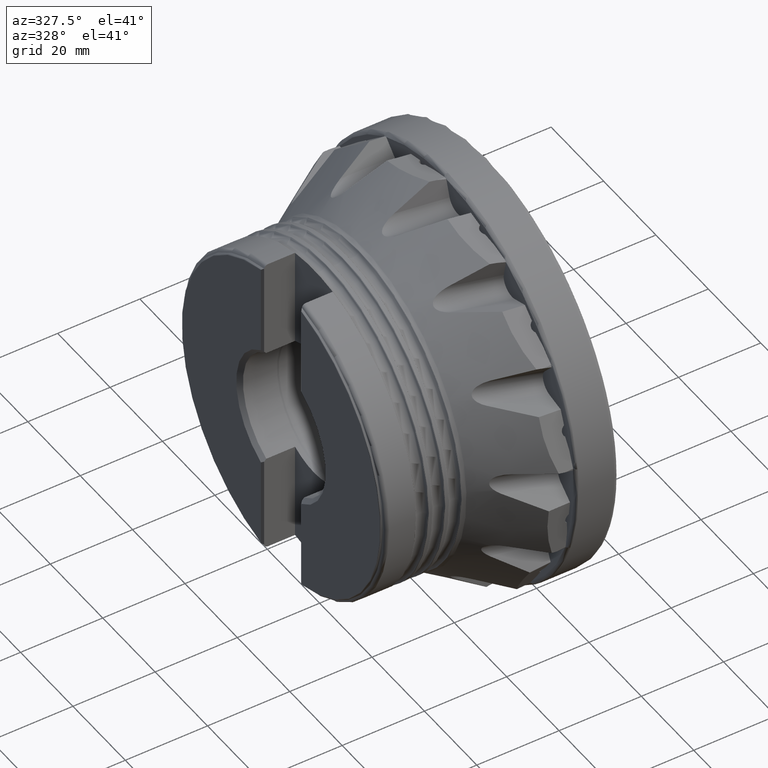
[diagram: clean part render]
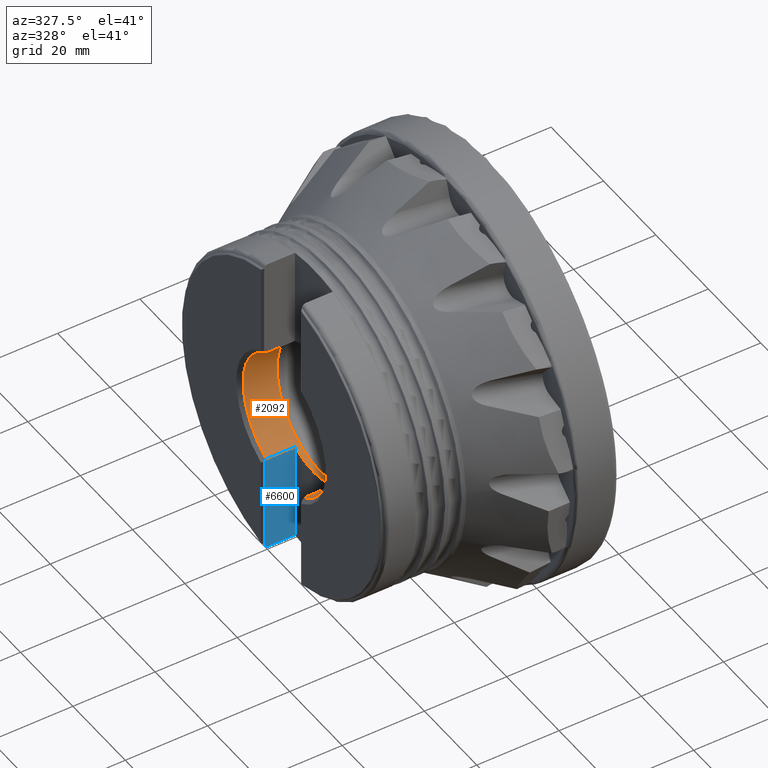
[diagram: same view with the hole feature highlighted: cylindrical wall and planar end face, labeled with their STEP entity ids]
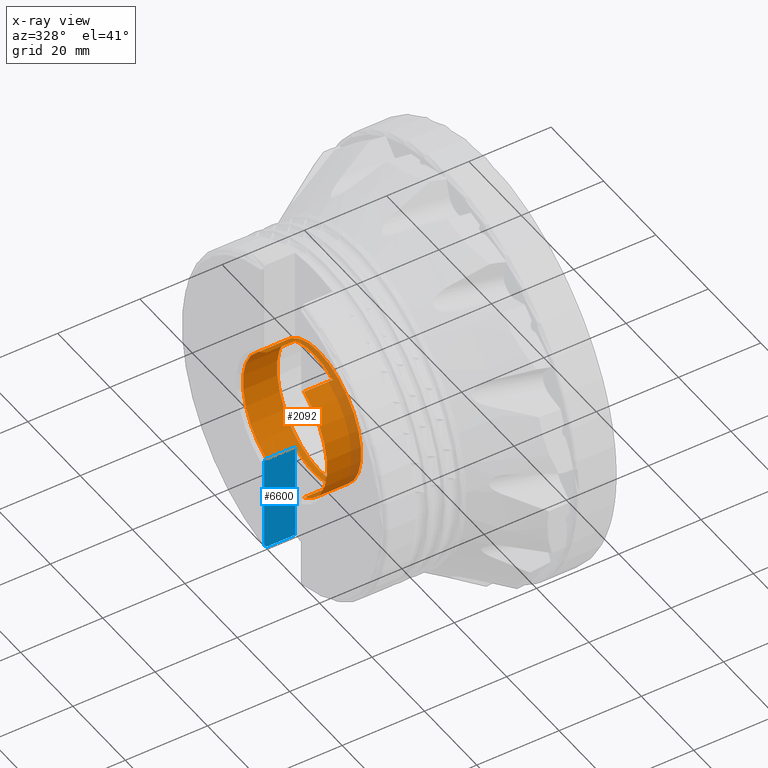
[diagram: x-ray of the same camera — body ghosted, the hole faces saturated]
A machine part, auxiliary view. The highlighted faces form one hole feature of diameter 32.15 mm: the cylindrical wall (entity #2092, orange) and its adjacent planar end face (entity #6600, blue) — they share a circular edge in the B-rep.
The next image is the same camera in x-ray (body ghosted, the hole faces saturated) — the bore reads through the body.
Wall:
#102 = EDGE_CURVE ( 'NONE', #10263, #12245, #7971, .T. ) ;
#375 = ORIENTED_EDGE ( 'NONE', *, *, #9726, .T. ) ;
#451 = EDGE_CURVE ( 'NONE', #11304, #11989, #5970, .T. ) ;
#539 = AXIS2_PLACEMENT_3D ( 'NONE', #10567, #4635, #11594 ) ;
#609 = EDGE_CURVE ( 'NONE', #7766, #10263, #11109, .T. ) ;
#787 = AXIS2_PLACEMENT_3D ( 'NONE', #7133, #1185, #8135 ) ;
#987 = ORIENTED_EDGE ( 'NONE', *, *, #102, .T. ) ;
#1037 = CARTESIAN_POINT ( 'NONE',  ( 8.511868235461817200E-016, -7.200000000000000200, 14.37239106759900800 ) ) ;
#1185 = DIRECTION ( 'NONE',  ( -1.000000000000000000, -0.0000000000000000000, -0.0000000000000000000 ) ) ;
#1223 = DIRECTION ( 'NONE',  ( -1.000000000000000000, 0.0000000000000000000, 0.0000000000000000000 ) ) ;
#1263 = VERTEX_POINT ( 'NONE', #8096 ) ;
#1349 = CARTESIAN_POINT ( 'NONE',  ( -41.39999999999999900, -7.200000000000004600, -14.37239106759900800 ) ) ;
#1415 = EDGE_CURVE ( 'NONE', #1928, #1263, #3706, .T. ) ;
#1429 = CARTESIAN_POINT ( 'NONE',  ( 8.511868235461817200E-016, -7.200000000000000200, -14.37239106759900800 ) ) ;
#1504 = DIRECTION ( 'NONE',  ( -1.000000000000000000, -0.0000000000000000000, -0.0000000000000000000 ) ) ;
#1717 = CARTESIAN_POINT ( 'NONE',  ( -48.40000000000002000, 7.199999999999994000, -14.37239106759904300 ) ) ;
#1775 = VECTOR ( 'NONE', #7088, 1000.000000000000000 ) ;
#1840 = CARTESIAN_POINT ( 'NONE',  ( -48.39999999999999900, 0.0000000000000000000, 0.0000000000000000000 ) ) ;
#1901 = ORIENTED_EDGE ( 'NONE', *, *, #9236, .T. ) ;
#1928 = VERTEX_POINT ( 'NONE', #4260 ) ;
#2092 = ADVANCED_FACE ( 'NONE', ( #11186, #4471 ), #8015, .F. ) ;
#2873 = CARTESIAN_POINT ( 'NONE',  ( -48.39999999999999900, 7.199999999999994000, 14.37239106759902700 ) ) ;
#2876 = LINE ( 'NONE', #1037, #1775 ) ;
#3284 = ORIENTED_EDGE ( 'NONE', *, *, #609, .T. ) ;
#3706 = CIRCLE ( 'NONE', #10593, 16.07499999999999200 ) ;
#4151 = VERTEX_POINT ( 'NONE', #4649 ) ;
#4260 = CARTESIAN_POINT ( 'NONE',  ( -48.39999999999999900, -7.200000000000005500, -14.37239106759902200 ) ) ;
#4426 = DIRECTION ( 'NONE',  ( 1.000000000000000000, -0.0000000000000000000, -0.0000000000000000000 ) ) ;
#4471 = FACE_OUTER_BOUND ( 'NONE', #7945, .T. ) ;
#4635 = DIRECTION ( 'NONE',  ( 1.000000000000000000, -0.0000000000000000000, -0.0000000000000000000 ) ) ;
#4649 = CARTESIAN_POINT ( 'NONE',  ( -40.14999999999999900, 0.0000000000000000000, -16.07499999999999600 ) ) ;
#4942 = EDGE_CURVE ( 'NONE', #11989, #1928, #6435, .T. ) ;
#5421 = ORIENTED_EDGE ( 'NONE', *, *, #1415, .T. ) ;
#5427 = DIRECTION ( 'NONE',  ( 0.0000000000000000000, 0.0000000000000000000, -1.000000000000000000 ) ) ;
#5491 = ORIENTED_EDGE ( 'NONE', *, *, #9414, .T. ) ;
#5519 = DIRECTION ( 'NONE',  ( 1.000000000000000000, -0.0000000000000000000, -0.0000000000000000000 ) ) ;
#5587 = DIRECTION ( 'NONE',  ( -1.000000000000000000, -0.0000000000000000000, -0.0000000000000000000 ) ) ;
#5693 = AXIS2_PLACEMENT_3D ( 'NONE', #6455, #5587, #5427 ) ;
#5771 = CIRCLE ( 'NONE', #539, 16.07499999999999600 ) ;
#5879 = CARTESIAN_POINT ( 'NONE',  ( -8.511868235461817200E-016, 7.200000000000000200, 14.37239106759900800 ) ) ;
#5970 = CIRCLE ( 'NONE', #5693, 16.07499999999999200 ) ;
#6364 = CARTESIAN_POINT ( 'NONE',  ( -41.39999999999999900, 7.199999999999994800, 14.37239106759900800 ) ) ;
#6435 = LINE ( 'NONE', #1429, #10005 ) ;
#6455 = CARTESIAN_POINT ( 'NONE',  ( -41.39999999999999900, 0.0000000000000000000, 0.0000000000000000000 ) ) ;
#6796 = DIRECTION ( 'NONE',  ( 0.0000000000000000000, 0.0000000000000000000, -1.000000000000000000 ) ) ;
#7088 = DIRECTION ( 'NONE',  ( 1.000000000000000000, -0.0000000000000000000, -0.0000000000000000000 ) ) ;
#7133 = CARTESIAN_POINT ( 'NONE',  ( -41.39999999999999900, 0.0000000000000000000, 0.0000000000000000000 ) ) ;
#7317 = ORIENTED_EDGE ( 'NONE', *, *, #451, .T. ) ;
#7322 = ORIENTED_EDGE ( 'NONE', *, *, #4942, .T. ) ;
#7444 = CARTESIAN_POINT ( 'NONE',  ( -48.39999999999999900, 0.0000000000000000000, 0.0000000000000000000 ) ) ;
#7743 = CARTESIAN_POINT ( 'NONE',  ( -41.39999999999999900, -7.200000000000004600, 14.37239106759900800 ) ) ;
#7766 = VERTEX_POINT ( 'NONE', #6364 ) ;
#7799 = CARTESIAN_POINT ( 'NONE',  ( 0.0000000000000000000, 0.0000000000000000000, 0.0000000000000000000 ) ) ;
#7945 = EDGE_LOOP ( 'NONE', ( #375 ) ) ;
#7971 = CIRCLE ( 'NONE', #8821, 16.07499999999999200 ) ;
#8004 = LINE ( 'NONE', #9363, #8155 ) ;
#8015 = CYLINDRICAL_SURFACE ( 'NONE', #10517, 16.07499999999999200 ) ;
#8096 = CARTESIAN_POINT ( 'NONE',  ( -48.40000000000002000, -7.200000000000005500, 14.37239106759903600 ) ) ;
#8135 = DIRECTION ( 'NONE',  ( 0.0000000000000000000, 1.776356839400250500E-015, -1.000000000000000000 ) ) ;
#8155 = VECTOR ( 'NONE', #4426, 1000.000000000000000 ) ;
#8450 = DIRECTION ( 'NONE',  ( 0.0000000000000000000, 0.0000000000000000000, 1.000000000000000000 ) ) ;
#8821 = AXIS2_PLACEMENT_3D ( 'NONE', #1840, #11774, #10241 ) ;
#8883 = EDGE_LOOP ( 'NONE', ( #5421, #1901, #5491, #3284, #987, #9654, #7317, #7322 ) ) ;
#9104 = VERTEX_POINT ( 'NONE', #7743 ) ;
#9236 = EDGE_CURVE ( 'NONE', #1263, #9104, #2876, .T. ) ;
#9363 = CARTESIAN_POINT ( 'NONE',  ( -8.511868235461817200E-016, 7.200000000000000200, -14.37239106759900800 ) ) ;
#9414 = EDGE_CURVE ( 'NONE', #9104, #7766, #10031, .T. ) ;
#9654 = ORIENTED_EDGE ( 'NONE', *, *, #12525, .T. ) ;
#9726 = EDGE_CURVE ( 'NONE', #4151, #4151, #5771, .T. ) ;
#10005 = VECTOR ( 'NONE', #12328, 1000.000000000000000 ) ;
#10031 = CIRCLE ( 'NONE', #787, 16.07499999999999200 ) ;
#10241 = DIRECTION ( 'NONE',  ( 0.0000000000000000000, 0.0000000000000000000, 1.000000000000000000 ) ) ;
#10263 = VERTEX_POINT ( 'NONE', #2873 ) ;
#10409 = CARTESIAN_POINT ( 'NONE',  ( -41.39999999999999900, 7.199999999999994800, -14.37239106759900800 ) ) ;
#10517 = AXIS2_PLACEMENT_3D ( 'NONE', #7799, #5519, #6796 ) ;
#10567 = CARTESIAN_POINT ( 'NONE',  ( -40.14999999999999900, 0.0000000000000000000, 0.0000000000000000000 ) ) ;
#10593 = AXIS2_PLACEMENT_3D ( 'NONE', #7444, #1504, #8450 ) ;
#10947 = VECTOR ( 'NONE', #1223, 1000.000000000000000 ) ;
#11109 = LINE ( 'NONE', #5879, #10947 ) ;
#11186 = FACE_OUTER_BOUND ( 'NONE', #8883, .T. ) ;
#11304 = VERTEX_POINT ( 'NONE', #10409 ) ;
#11594 = DIRECTION ( 'NONE',  ( 0.0000000000000000000, 0.0000000000000000000, -1.000000000000000000 ) ) ;
#11774 = DIRECTION ( 'NONE',  ( -1.000000000000000000, -0.0000000000000000000, -0.0000000000000000000 ) ) ;
#11989 = VERTEX_POINT ( 'NONE', #1349 ) ;
#12245 = VERTEX_POINT ( 'NONE', #1717 ) ;
#12328 = DIRECTION ( 'NONE',  ( -1.000000000000000000, 0.0000000000000000000, 0.0000000000000000000 ) ) ;
#12525 = EDGE_CURVE ( 'NONE', #12245, #11304, #8004, .T. ) ;
End face:
#165 = ORIENTED_EDGE ( 'NONE', *, *, #6167, .F. ) ;
#373 = CARTESIAN_POINT ( 'NONE',  ( -41.42857252953746900, 7.199999999999995700, -38.32025068518119300 ) ) ;
#790 = DIRECTION ( 'NONE',  ( -1.000000000000000000, -1.182203921591919000E-016, 0.0000000000000000000 ) ) ;
#1399 = CARTESIAN_POINT ( 'NONE',  ( -41.39999999999999900, 7.199999999999994800, -38.30754676226784700 ) ) ;
#1558 = ORIENTED_EDGE ( 'NONE', *, *, #12525, .F. ) ;
#1582 = CARTESIAN_POINT ( 'NONE',  ( -48.89999999999999900, 7.199999999999994000, -37.56441585497369600 ) ) ;
#1717 = CARTESIAN_POINT ( 'NONE',  ( -48.40000000000002000, 7.199999999999994000, -14.37239106759904300 ) ) ;
#1989 = B_SPLINE_CURVE_WITH_KNOTS ( 'NONE', 3,
 ( #6115, #12048, #9094, #3155 ),
 .UNSPECIFIED., .F., .F.,
 ( 4, 4 ),
 ( 0.06484678048183240000, 0.06557714753464855000 ),
 .UNSPECIFIED. ) ;
#2492 = ORIENTED_EDGE ( 'NONE', *, *, #6193, .T. ) ;
#2678 = CARTESIAN_POINT ( 'NONE',  ( -48.39315493733440800, 7.199999999999993100, -38.24089574729672600 ) ) ;
#2987 = CARTESIAN_POINT ( 'NONE',  ( -48.89999999999999900, 7.199999999999994000, -37.09776408356708500 ) ) ;
#3155 = CARTESIAN_POINT ( 'NONE',  ( -48.90000000000782900, 7.199999999999994000, -14.92952192805446500 ) ) ;
#3181 = CARTESIAN_POINT ( 'NONE',  ( -41.49059737205869400, 7.199999999999994800, -38.32962300884264600 ) ) ;
#3228 = LINE ( 'NONE', #2987, #12650 ) ;
#3558 = CARTESIAN_POINT ( 'NONE',  ( -48.90000000000782900, 7.199999999999994000, -14.92952192805446500 ) ) ;
#3690 = CARTESIAN_POINT ( 'NONE',  ( -47.96233724523590800, 7.200000000000000200, -38.32962300884264600 ) ) ;
#3734 = VERTEX_POINT ( 'NONE', #3558 ) ;
#3773 = VERTEX_POINT ( 'NONE', #5641 ) ;
#4426 = DIRECTION ( 'NONE',  ( 1.000000000000000000, -0.0000000000000000000, -0.0000000000000000000 ) ) ;
#4434 = B_SPLINE_CURVE_WITH_KNOTS ( 'NONE', 3,
 ( #3690, #9613, #2678, #4684, #11639, #5678 ),
 .UNSPECIFIED., .F., .F.,
 ( 4, 2, 4 ),
 ( 0.006145485188158508700, 0.006791258069422140400, 0.007437030950685772100 ),
 .UNSPECIFIED. ) ;
#4684 = CARTESIAN_POINT ( 'NONE',  ( -48.72588908448582900, 7.199999999999994000, -37.96738159230030600 ) ) ;
#4781 = ORIENTED_EDGE ( 'NONE', *, *, #11126, .T. ) ;
#4823 = DIRECTION ( 'NONE',  ( 1.000000000000000000, -0.0000000000000000000, -0.0000000000000000000 ) ) ;
#5641 = CARTESIAN_POINT ( 'NONE',  ( -41.39999999999999900, 7.199999999999994800, -38.30754676226784700 ) ) ;
#5678 = CARTESIAN_POINT ( 'NONE',  ( -48.89999999999999900, 7.199999999999994000, -37.56441585497369600 ) ) ;
#5747 = VECTOR ( 'NONE', #10619, 1000.000000000000000 ) ;
#5878 = EDGE_CURVE ( 'NONE', #10253, #8067, #10198, .T. ) ;
#6115 = CARTESIAN_POINT ( 'NONE',  ( -48.40000000000002000, 7.199999999999994000, -14.37239106759904300 ) ) ;
#6167 = EDGE_CURVE ( 'NONE', #10253, #8975, #4434, .T. ) ;
#6193 = EDGE_CURVE ( 'NONE', #3773, #11304, #10863, .T. ) ;
#6355 = CARTESIAN_POINT ( 'NONE',  ( -41.45916290143408400, 7.199999999999995700, -38.32773013820240500 ) ) ;
#6368 = EDGE_LOOP ( 'NONE', ( #9480, #4781, #165, #8959, #12780, #2492, #1558 ) ) ;
#6600 = ADVANCED_FACE ( 'NONE', ( #11258 ), #12682, .F. ) ;
#6757 = DIRECTION ( 'NONE',  ( -1.182203921591919000E-016, 1.000000000000000000, 0.0000000000000000000 ) ) ;
#7353 = CARTESIAN_POINT ( 'NONE',  ( -41.41383451620527000, 7.199999999999994800, -38.31469927187224300 ) ) ;
#7614 = CARTESIAN_POINT ( 'NONE',  ( -41.39999999999999900, 7.199999999999994800, -40.00000000000000000 ) ) ;
#7815 = CARTESIAN_POINT ( 'NONE',  ( -47.96233724523590800, 7.200000000000000200, -38.32962300884264600 ) ) ;
#8004 = LINE ( 'NONE', #9363, #8155 ) ;
#8067 = VERTEX_POINT ( 'NONE', #3181 ) ;
#8155 = VECTOR ( 'NONE', #4426, 1000.000000000000000 ) ;
#8345 = AXIS2_PLACEMENT_3D ( 'NONE', #8706, #6757, #790 ) ;
#8680 = EDGE_CURVE ( 'NONE', #12245, #3734, #1989, .T. ) ;
#8706 = CARTESIAN_POINT ( 'NONE',  ( -41.39999999999999900, 7.199999999999994800, -40.00000000000000000 ) ) ;
#8959 = ORIENTED_EDGE ( 'NONE', *, *, #5878, .T. ) ;
#8975 = VERTEX_POINT ( 'NONE', #1582 ) ;
#9094 = CARTESIAN_POINT ( 'NONE',  ( -48.73298243544810800, 7.199999999999994000, -14.74409628978426100 ) ) ;
#9306 = CARTESIAN_POINT ( 'NONE',  ( -41.49059737205869400, 7.199999999999994800, -38.32962300884264600 ) ) ;
#9363 = CARTESIAN_POINT ( 'NONE',  ( -8.511868235461817200E-016, 7.200000000000000200, -14.37239106759900800 ) ) ;
#9480 = ORIENTED_EDGE ( 'NONE', *, *, #8680, .T. ) ;
#9613 = CARTESIAN_POINT ( 'NONE',  ( -48.17996749756692800, 7.199999999999994000, -38.32271778131917700 ) ) ;
#9871 = VECTOR ( 'NONE', #4823, 1000.000000000000000 ) ;
#9926 = DIRECTION ( 'NONE',  ( 0.0000000000000000000, 0.0000000000000000000, -1.000000000000000000 ) ) ;
#10198 = LINE ( 'NONE', #10760, #9871 ) ;
#10253 = VERTEX_POINT ( 'NONE', #7815 ) ;
#10300 = CARTESIAN_POINT ( 'NONE',  ( -41.47495707406896800, 7.199999999999995700, -38.32962300884264600 ) ) ;
#10409 = CARTESIAN_POINT ( 'NONE',  ( -41.39999999999999900, 7.199999999999994800, -14.37239106759900800 ) ) ;
#10619 = DIRECTION ( 'NONE',  ( -0.0000000000000000000, -0.0000000000000000000, 1.000000000000000000 ) ) ;
#10760 = CARTESIAN_POINT ( 'NONE',  ( -8.511868235461817200E-016, 7.200000000000000200, -38.32962300884264600 ) ) ;
#10863 = LINE ( 'NONE', #7614, #5747 ) ;
#11126 = EDGE_CURVE ( 'NONE', #3734, #8975, #3228, .T. ) ;
#11258 = FACE_OUTER_BOUND ( 'NONE', #6368, .T. ) ;
#11304 = VERTEX_POINT ( 'NONE', #10409 ) ;
#11497 = EDGE_CURVE ( 'NONE', #8067, #3773, #12653, .T. ) ;
#11639 = CARTESIAN_POINT ( 'NONE',  ( -48.84751051305600800, 7.199999999999994000, -37.77343780665968600 ) ) ;
#12048 = CARTESIAN_POINT ( 'NONE',  ( -48.56630372447404700, 7.199999999999994000, -14.55839577331199700 ) ) ;
#12245 = VERTEX_POINT ( 'NONE', #1717 ) ;
#12525 = EDGE_CURVE ( 'NONE', #12245, #11304, #8004, .T. ) ;
#12650 = VECTOR ( 'NONE', #9926, 1000.000000000000000 ) ;
#12653 = B_SPLINE_CURVE_WITH_KNOTS ( 'NONE', 3,
 ( #9306, #10300, #6355, #373, #7353, #1399 ),
 .UNSPECIFIED., .F., .F.,
 ( 4, 2, 4 ),
 ( 0.001207498645837121600, 0.001254200181281337600, 0.001300901716725553400 ),
 .UNSPECIFIED. ) ;
#12682 = PLANE ( 'NONE',  #8345 ) ;
#12780 = ORIENTED_EDGE ( 'NONE', *, *, #11497, .T. ) ;